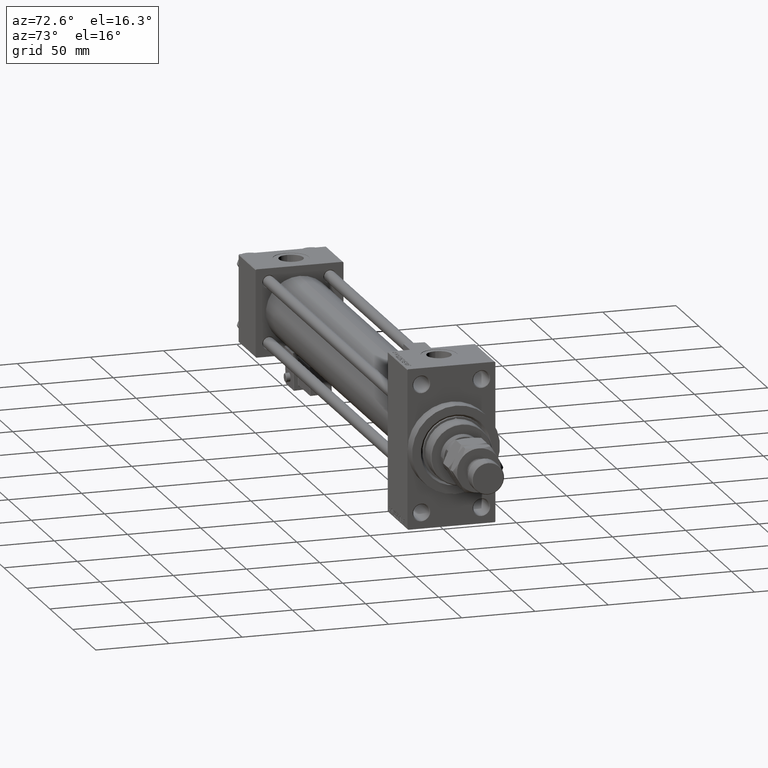
[diagram: clean part render]
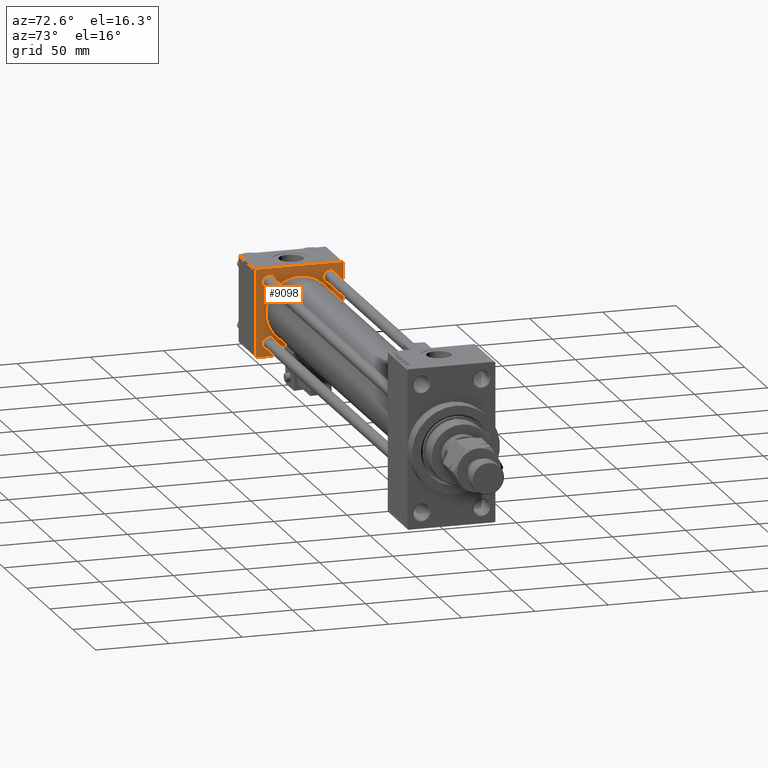
[diagram: same view with one face highlighted and labeled with its STEP entity id]
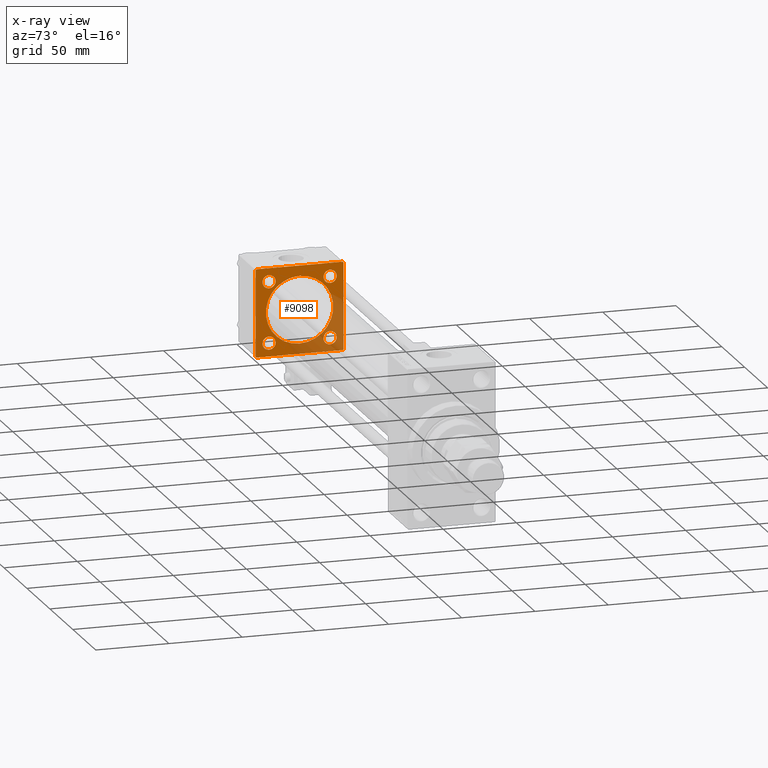
[diagram: x-ray of the same camera — body ghosted, the highlighted face saturated]
A machine part, auxiliary view. The second image highlights one B-rep face of the part: STEP entity #9098.
The next image is the same camera in x-ray: the body ghosted, the highlighted face saturated — about 30% of this face is hidden behind the body in this view.
In plain terms, the highlighted planar face has unit normal (-1, 0, 0).
Its self-contained STEP definition (entity closure, byte-faithful):
#60 = VERTEX_POINT ( 'NONE', #9522 ) ;
#200 = AXIS2_PLACEMENT_3D ( 'NONE', #13036, #4746, #32526 ) ;
#277 = AXIS2_PLACEMENT_3D ( 'NONE', #18206, #34050, #49928 ) ;
#600 = DIRECTION ( 'NONE',  ( 0.000000000000000000, 0.000000000000000000, -1.000000000000000000 ) ) ;
#920 = CARTESIAN_POINT ( 'NONE',  ( 37.00000000000000000, 20.84999999999999787, -16.35000000000005116 ) ) ;
#1148 = CIRCLE ( 'NONE', #40991, 4.499999999999948486 ) ;
#1444 = DIRECTION ( 'NONE',  ( -0.000000000000000000, 0.7071067811865574537, 0.7071067811865376918 ) ) ;
#1504 = CARTESIAN_POINT ( 'NONE',  ( 37.00000000000000000, -20.84999999999999076, 25.34999999999995168 ) ) ;
#1564 = DIRECTION ( 'NONE',  ( 1.000000000000000000, -0.000000000000000000, 0.000000000000000000 ) ) ;
#1884 = CARTESIAN_POINT ( 'NONE',  ( 37.00000000000000000, 20.84999999999999787, 20.85000000000000142 ) ) ;
#2105 = ORIENTED_EDGE ( 'NONE', *, *, #18668, .T. ) ;
#2602 = DIRECTION ( 'NONE',  ( 0.000000000000000000, 0.000000000000000000, 1.000000000000000000 ) ) ;
#2933 = DIRECTION ( 'NONE',  ( 0.000000000000000000, 0.000000000000000000, 1.000000000000000000 ) ) ;
#3557 = AXIS2_PLACEMENT_3D ( 'NONE', #22080, #1564, #5479 ) ;
#4119 = CIRCLE ( 'NONE', #33138, 4.499999999999948486 ) ;
#4368 = DIRECTION ( 'NONE',  ( -1.000000000000000000, 0.000000000000000000, -0.000000000000000000 ) ) ;
#4606 = ORIENTED_EDGE ( 'NONE', *, *, #25346, .T. ) ;
#4746 = DIRECTION ( 'NONE',  ( -1.000000000000000000, 0.000000000000000000, -0.000000000000000000 ) ) ;
#5479 = DIRECTION ( 'NONE',  ( 0.000000000000000000, 0.000000000000000000, 1.000000000000000000 ) ) ;
#5916 = DIRECTION ( 'NONE',  ( 0.000000000000000000, 0.000000000000000000, 1.000000000000000000 ) ) ;
#6319 = ORIENTED_EDGE ( 'NONE', *, *, #29838, .T. ) ;
#6355 = VECTOR ( 'NONE', #8650, 1000.000000000000000 ) ;
#6693 = EDGE_LOOP ( 'NONE', ( #2105, #6319 ) ) ;
#7519 = FACE_BOUND ( 'NONE', #39215, .T. ) ;
#7548 = DIRECTION ( 'NONE',  ( 0.000000000000000000, -0.7071067811865474617, 0.7071067811865474617 ) ) ;
#7709 = CIRCLE ( 'NONE', #200, 4.499999999999948486 ) ;
#7993 = VECTOR ( 'NONE', #7548, 1000.000000000000114 ) ;
#8144 = DIRECTION ( 'NONE',  ( 0.000000000000000000, 0.7071067811865474617, -0.7071067811865474617 ) ) ;
#8146 = AXIS2_PLACEMENT_3D ( 'NONE', #27695, #19635, #23799 ) ;
#8179 = ORIENTED_EDGE ( 'NONE', *, *, #18722, .T. ) ;
#8268 = PLANE ( 'NONE',  #33860 ) ;
#8471 = ORIENTED_EDGE ( 'NONE', *, *, #48555, .T. ) ;
#8650 = DIRECTION ( 'NONE',  ( 0.000000000000000000, -1.000000000000000000, -1.156482317317871725E-16 ) ) ;
#8841 = LINE ( 'NONE', #24950, #48682 ) ;
#9098 = ADVANCED_FACE ( 'NONE', ( #20200, #11649, #28511, #7519, #47769, #23352 ), #8268, .F. ) ;
#9522 = CARTESIAN_POINT ( 'NONE',  ( 37.00000000000000000, -29.50000000000000000, -30.00000000000000711 ) ) ;
#9962 = ORIENTED_EDGE ( 'NONE', *, *, #37837, .F. ) ;
#10586 = VERTEX_POINT ( 'NONE', #16841 ) ;
#10899 = ORIENTED_EDGE ( 'NONE', *, *, #26209, .T. ) ;
#11008 = DIRECTION ( 'NONE',  ( -1.000000000000000000, 0.000000000000000000, -0.000000000000000000 ) ) ;
#11173 = LINE ( 'NONE', #51192, #7993 ) ;
#11249 = DIRECTION ( 'NONE',  ( -1.000000000000000000, 0.000000000000000000, -0.000000000000000000 ) ) ;
#11313 = CARTESIAN_POINT ( 'NONE',  ( 37.00000000000000000, 29.99999999999999289, 29.50000000000000000 ) ) ;
#11649 = FACE_BOUND ( 'NONE', #16476, .T. ) ;
#13036 = CARTESIAN_POINT ( 'NONE',  ( 37.00000000000000000, 20.84999999999999787, 20.85000000000000142 ) ) ;
#13053 = CARTESIAN_POINT ( 'NONE',  ( 37.00000000000000000, 29.99999999999999289, 30.00000000000000000 ) ) ;
#13381 = CARTESIAN_POINT ( 'NONE',  ( 37.00000000000000000, -20.84999999999999076, -25.34999999999995168 ) ) ;
#13422 = CARTESIAN_POINT ( 'NONE',  ( 36.99999999999997868, -2.602085213965210642E-15, 23.00000000000000000 ) ) ;
#13543 = CIRCLE ( 'NONE', #31800, 4.499999999999948486 ) ;
#13949 = DIRECTION ( 'NONE',  ( -1.000000000000000000, 0.000000000000000000, -0.000000000000000000 ) ) ;
#15147 = CARTESIAN_POINT ( 'NONE',  ( 37.00000000000000000, -20.84999999999999076, -20.85000000000000497 ) ) ;
#15305 = CARTESIAN_POINT ( 'NONE',  ( 37.00000000000000000, 20.84999999999999787, -25.34999999999994813 ) ) ;
#15436 = EDGE_CURVE ( 'NONE', #48668, #20531, #1148, .T. ) ;
#15825 = VERTEX_POINT ( 'NONE', #13381 ) ;
#16476 = EDGE_LOOP ( 'NONE', ( #10899, #25347 ) ) ;
#16841 = CARTESIAN_POINT ( 'NONE',  ( 37.00000000000000000, -30.00000000000000000, -29.50000000000001776 ) ) ;
#17181 = VECTOR ( 'NONE', #600, 1000.000000000000000 ) ;
#17348 = DIRECTION ( 'NONE',  ( 0.000000000000000000, 0.000000000000000000, 1.000000000000000000 ) ) ;
#17353 = VERTEX_POINT ( 'NONE', #45641 ) ;
#18165 = VERTEX_POINT ( 'NONE', #13422 ) ;
#18206 = CARTESIAN_POINT ( 'NONE',  ( 36.99999999999997868, -2.602085213965210642E-15, 0.000000000000000000 ) ) ;
#18548 = CARTESIAN_POINT ( 'NONE',  ( 37.00000000000000000, 20.84999999999999787, 25.34999999999994813 ) ) ;
#18661 = VECTOR ( 'NONE', #8144, 1000.000000000000114 ) ;
#18668 = EDGE_CURVE ( 'NONE', #15825, #19467, #24272, .T. ) ;
#18705 = ORIENTED_EDGE ( 'NONE', *, *, #39854, .F. ) ;
#18722 = EDGE_CURVE ( 'NONE', #45921, #32325, #7709, .T. ) ;
#19271 = CARTESIAN_POINT ( 'NONE',  ( 37.00000000000000000, 29.49999999999997868, -30.00000000000000000 ) ) ;
#19467 = VERTEX_POINT ( 'NONE', #40531 ) ;
#19583 = VERTEX_POINT ( 'NONE', #41049 ) ;
#19635 = DIRECTION ( 'NONE',  ( -1.000000000000000000, 0.000000000000000000, -0.000000000000000000 ) ) ;
#20148 = VECTOR ( 'NONE', #48533, 1000.000000000000000 ) ;
#20200 = FACE_BOUND ( 'NONE', #6693, .T. ) ;
#20531 = VERTEX_POINT ( 'NONE', #15305 ) ;
#20845 = CARTESIAN_POINT ( 'NONE',  ( 37.00000000000000000, 29.99999999999999289, -30.00000000000000000 ) ) ;
#21388 = DIRECTION ( 'NONE',  ( -1.000000000000000000, 0.000000000000000000, -0.000000000000000000 ) ) ;
#21596 = CARTESIAN_POINT ( 'NONE',  ( 37.00000000000000000, -20.84999999999999076, 20.85000000000000497 ) ) ;
#21655 = VERTEX_POINT ( 'NONE', #1504 ) ;
#22071 = LINE ( 'NONE', #20845, #6355 ) ;
#22080 = CARTESIAN_POINT ( 'NONE',  ( 36.99999999999997868, -2.602085213965210642E-15, 0.000000000000000000 ) ) ;
#22393 = VERTEX_POINT ( 'NONE', #44721 ) ;
#23345 = LINE ( 'NONE', #43858, #20148 ) ;
#23352 = FACE_OUTER_BOUND ( 'NONE', #49847, .T. ) ;
#23799 = DIRECTION ( 'NONE',  ( 0.000000000000000000, 0.000000000000000000, 1.000000000000000000 ) ) ;
#23877 = VECTOR ( 'NONE', #29645, 1000.000000000000114 ) ;
#24272 = CIRCLE ( 'NONE', #38400, 4.499999999999948486 ) ;
#24444 = ORIENTED_EDGE ( 'NONE', *, *, #43564, .T. ) ;
#24950 = CARTESIAN_POINT ( 'NONE',  ( 37.00000000000000000, -30.00000000000000000, 29.99999999999999289 ) ) ;
#25033 = ORIENTED_EDGE ( 'NONE', *, *, #32500, .T. ) ;
#25346 = EDGE_CURVE ( 'NONE', #19583, #35230, #23345, .T. ) ;
#25347 = ORIENTED_EDGE ( 'NONE', *, *, #15436, .T. ) ;
#25729 = DIRECTION ( 'NONE',  ( -1.000000000000000000, 0.000000000000000000, -0.000000000000000000 ) ) ;
#25735 = EDGE_CURVE ( 'NONE', #22393, #18165, #42609, .T. ) ;
#26209 = EDGE_CURVE ( 'NONE', #20531, #48668, #13543, .T. ) ;
#26669 = EDGE_LOOP ( 'NONE', ( #24444, #8471 ) ) ;
#26897 = VECTOR ( 'NONE', #1444, 999.9999999999998863 ) ;
#27455 = ORIENTED_EDGE ( 'NONE', *, *, #47447, .T. ) ;
#27695 = CARTESIAN_POINT ( 'NONE',  ( 37.00000000000000000, -20.84999999999999076, 20.85000000000000497 ) ) ;
#28060 = EDGE_CURVE ( 'NONE', #18165, #22393, #33381, .T. ) ;
#28075 = CIRCLE ( 'NONE', #48025, 4.499999999999948486 ) ;
#28511 = FACE_BOUND ( 'NONE', #26669, .T. ) ;
#28676 = VERTEX_POINT ( 'NONE', #19271 ) ;
#29645 = DIRECTION ( 'NONE',  ( -0.000000000000000000, -0.7071067811865474617, -0.7071067811865474617 ) ) ;
#29838 = EDGE_CURVE ( 'NONE', #19467, #15825, #40975, .T. ) ;
#30535 = CIRCLE ( 'NONE', #8146, 4.499999999999948486 ) ;
#31443 = EDGE_CURVE ( 'NONE', #28676, #42340, #37044, .T. ) ;
#31800 = AXIS2_PLACEMENT_3D ( 'NONE', #33423, #41493, #5916 ) ;
#32325 = VERTEX_POINT ( 'NONE', #18548 ) ;
#32482 = ORIENTED_EDGE ( 'NONE', *, *, #25735, .F. ) ;
#32500 = EDGE_CURVE ( 'NONE', #10586, #60, #44009, .T. ) ;
#32505 = VERTEX_POINT ( 'NONE', #39851 ) ;
#32526 = DIRECTION ( 'NONE',  ( 0.000000000000000000, 0.000000000000000000, 1.000000000000000000 ) ) ;
#33014 = ORIENTED_EDGE ( 'NONE', *, *, #28060, .F. ) ;
#33138 = AXIS2_PLACEMENT_3D ( 'NONE', #1884, #21388, #37237 ) ;
#33381 = CIRCLE ( 'NONE', #3557, 23.00000000000000000 ) ;
#33423 = CARTESIAN_POINT ( 'NONE',  ( 37.00000000000000000, 20.84999999999999787, -20.85000000000000142 ) ) ;
#33446 = ORIENTED_EDGE ( 'NONE', *, *, #35505, .T. ) ;
#33459 = AXIS2_PLACEMENT_3D ( 'NONE', #15147, #11249, #2933 ) ;
#33544 = CARTESIAN_POINT ( 'NONE',  ( 37.00000000000000000, -30.00000000000000000, 29.49999999999999289 ) ) ;
#33689 = CARTESIAN_POINT ( 'NONE',  ( 37.00000000000000000, 20.84999999999999787, -20.85000000000000142 ) ) ;
#33753 = ORIENTED_EDGE ( 'NONE', *, *, #50134, .T. ) ;
#33860 = AXIS2_PLACEMENT_3D ( 'NONE', #39962, #4368, #39202 ) ;
#34050 = DIRECTION ( 'NONE',  ( 1.000000000000000000, -0.000000000000000000, 0.000000000000000000 ) ) ;
#34609 = EDGE_LOOP ( 'NONE', ( #33014, #32482 ) ) ;
#35230 = VERTEX_POINT ( 'NONE', #43319 ) ;
#35505 = EDGE_CURVE ( 'NONE', #45076, #19583, #11173, .T. ) ;
#36972 = LINE ( 'NONE', #13053, #17181 ) ;
#37044 = LINE ( 'NONE', #40686, #26897 ) ;
#37237 = DIRECTION ( 'NONE',  ( 0.000000000000000000, 0.000000000000000000, 1.000000000000000000 ) ) ;
#37837 = EDGE_CURVE ( 'NONE', #45076, #42340, #36972, .T. ) ;
#38400 = AXIS2_PLACEMENT_3D ( 'NONE', #46621, #11008, #43233 ) ;
#38465 = ORIENTED_EDGE ( 'NONE', *, *, #39975, .T. ) ;
#39202 = DIRECTION ( 'NONE',  ( -0.000000000000000000, 0.000000000000000000, 1.000000000000000000 ) ) ;
#39215 = EDGE_LOOP ( 'NONE', ( #8179, #33753 ) ) ;
#39851 = CARTESIAN_POINT ( 'NONE',  ( 37.00000000000000000, -20.84999999999999076, 16.35000000000005471 ) ) ;
#39854 = EDGE_CURVE ( 'NONE', #28676, #60, #22071, .T. ) ;
#39962 = CARTESIAN_POINT ( 'NONE',  ( 37.00000000000000000, 0.000000000000000000, 0.000000000000000000 ) ) ;
#39975 = EDGE_CURVE ( 'NONE', #17353, #10586, #8841, .T. ) ;
#40278 = ORIENTED_EDGE ( 'NONE', *, *, #31443, .T. ) ;
#40531 = CARTESIAN_POINT ( 'NONE',  ( 37.00000000000000000, -20.84999999999999076, -16.35000000000005471 ) ) ;
#40588 = LINE ( 'NONE', #33544, #23877 ) ;
#40686 = CARTESIAN_POINT ( 'NONE',  ( 37.00000000000000000, 29.99999999999999289, -29.50000000000000000 ) ) ;
#40803 = DIRECTION ( 'NONE',  ( 0.000000000000000000, 0.000000000000000000, -1.000000000000000000 ) ) ;
#40975 = CIRCLE ( 'NONE', #33459, 4.499999999999948486 ) ;
#40991 = AXIS2_PLACEMENT_3D ( 'NONE', #33689, #13949, #17348 ) ;
#41049 = CARTESIAN_POINT ( 'NONE',  ( 37.00000000000000000, 29.49999999999999289, 30.00000000000000000 ) ) ;
#41493 = DIRECTION ( 'NONE',  ( -1.000000000000000000, 0.000000000000000000, -0.000000000000000000 ) ) ;
#42340 = VERTEX_POINT ( 'NONE', #42621 ) ;
#42609 = CIRCLE ( 'NONE', #277, 23.00000000000000000 ) ;
#42621 = CARTESIAN_POINT ( 'NONE',  ( 37.00000000000000000, 29.99999999999999289, -29.50000000000000000 ) ) ;
#43233 = DIRECTION ( 'NONE',  ( 0.000000000000000000, 0.000000000000000000, 1.000000000000000000 ) ) ;
#43319 = CARTESIAN_POINT ( 'NONE',  ( 37.00000000000000000, -29.49999999999998579, 29.99999999999999289 ) ) ;
#43564 = EDGE_CURVE ( 'NONE', #32505, #21655, #28075, .T. ) ;
#43745 = CARTESIAN_POINT ( 'NONE',  ( 37.00000000000000000, -29.50000000000001066, -30.00000000000000711 ) ) ;
#43858 = CARTESIAN_POINT ( 'NONE',  ( 37.00000000000000000, 29.99999999999999289, 30.00000000000000000 ) ) ;
#44009 = LINE ( 'NONE', #43745, #18661 ) ;
#44721 = CARTESIAN_POINT ( 'NONE',  ( 36.99999999999997868, 2.146024240737016609E-16, -23.00000000000000000 ) ) ;
#45076 = VERTEX_POINT ( 'NONE', #11313 ) ;
#45641 = CARTESIAN_POINT ( 'NONE',  ( 37.00000000000000000, -30.00000000000000000, 29.49999999999999289 ) ) ;
#45921 = VERTEX_POINT ( 'NONE', #49290 ) ;
#46621 = CARTESIAN_POINT ( 'NONE',  ( 37.00000000000000000, -20.84999999999999076, -20.85000000000000497 ) ) ;
#47447 = EDGE_CURVE ( 'NONE', #35230, #17353, #40588, .T. ) ;
#47769 = FACE_BOUND ( 'NONE', #34609, .T. ) ;
#48025 = AXIS2_PLACEMENT_3D ( 'NONE', #21596, #25729, #2602 ) ;
#48533 = DIRECTION ( 'NONE',  ( 0.000000000000000000, -1.000000000000000000, -1.156482317317871725E-16 ) ) ;
#48555 = EDGE_CURVE ( 'NONE', #21655, #32505, #30535, .T. ) ;
#48668 = VERTEX_POINT ( 'NONE', #920 ) ;
#48682 = VECTOR ( 'NONE', #40803, 1000.000000000000000 ) ;
#49290 = CARTESIAN_POINT ( 'NONE',  ( 37.00000000000000000, 20.84999999999999787, 16.35000000000005116 ) ) ;
#49847 = EDGE_LOOP ( 'NONE', ( #18705, #40278, #9962, #33446, #4606, #27455, #38465, #25033 ) ) ;
#49928 = DIRECTION ( 'NONE',  ( 0.000000000000000000, 0.000000000000000000, 1.000000000000000000 ) ) ;
#50134 = EDGE_CURVE ( 'NONE', #32325, #45921, #4119, .T. ) ;
#51192 = CARTESIAN_POINT ( 'NONE',  ( 37.00000000000000000, 29.49999999999999289, 30.00000000000000000 ) ) ;